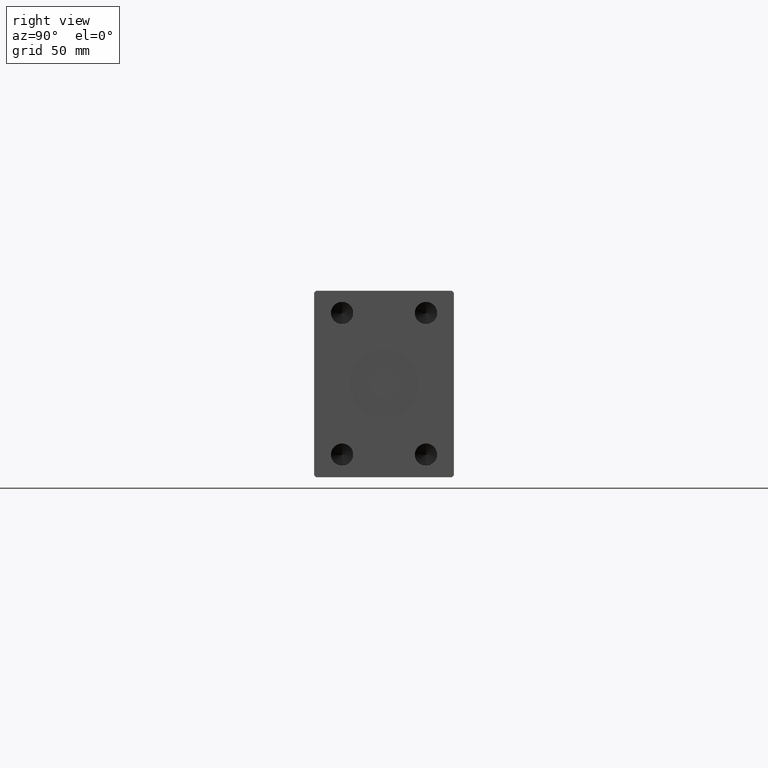
[diagram: clean part render]
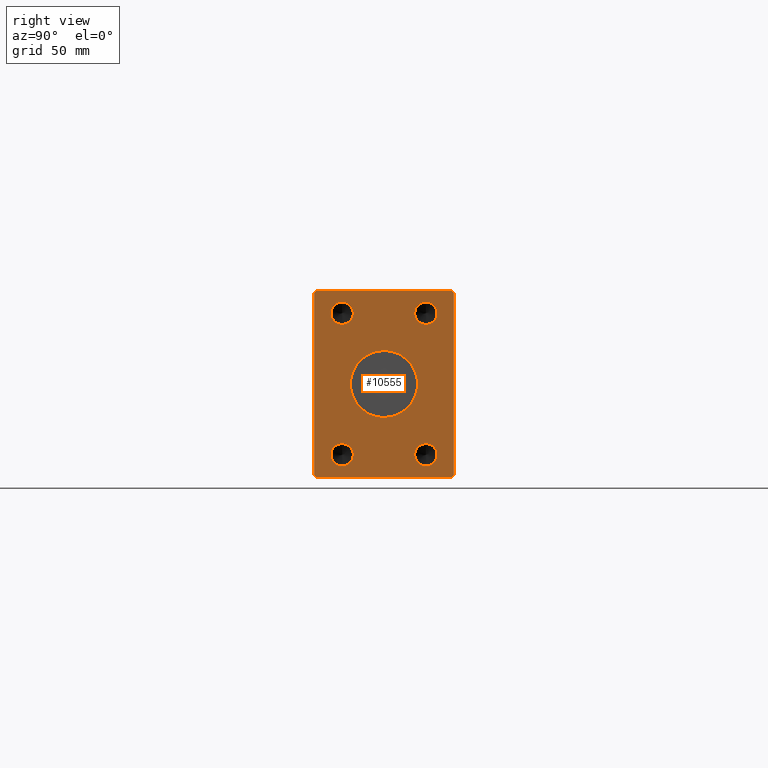
[diagram: same view with one face highlighted and labeled with its STEP entity id]
A machine part, right view. The second image highlights one B-rep face of the part: STEP entity #10555.
In plain terms, the highlighted planar face has unit normal (1, 0, 0).
Its self-contained STEP definition (entity closure, byte-faithful):
#52 = DIRECTION ( 'NONE',  ( 1.000000000000000000, -0.000000000000000000, -0.000000000000000000 ) ) ;
#449 = DIRECTION ( 'NONE',  ( 0.000000000000000000, 0.000000000000000000, -1.000000000000000000 ) ) ;
#728 = ORIENTED_EDGE ( 'NONE', *, *, #14985, .T. ) ;
#1016 = DIRECTION ( 'NONE',  ( 1.000000000000000000, -0.000000000000000000, -0.000000000000000000 ) ) ;
#1160 = DIRECTION ( 'NONE',  ( 0.000000000000000000, 0.7071067811865500152, -0.7071067811865451302 ) ) ;
#1209 = DIRECTION ( 'NONE',  ( 0.000000000000000000, 1.000000000000000000, 0.000000000000000000 ) ) ;
#1388 = CARTESIAN_POINT ( 'NONE',  ( 332.0000000000000000, 36.50000000000000711, -50.00000000000000000 ) ) ;
#2098 = FACE_BOUND ( 'NONE', #20555, .T. ) ;
#2123 = AXIS2_PLACEMENT_3D ( 'NONE', #15805, #40099, #20239 ) ;
#2928 = VECTOR ( 'NONE', #1209, 1000.000000000000000 ) ;
#4151 = CIRCLE ( 'NONE', #37928, 5.999999999999998224 ) ;
#5403 = ORIENTED_EDGE ( 'NONE', *, *, #5660, .T. ) ;
#5660 = EDGE_CURVE ( 'NONE', #17421, #19463, #24137, .T. ) ;
#5872 = CARTESIAN_POINT ( 'NONE',  ( 332.0000000000000000, 22.50000000000000000, 32.00000000000000000 ) ) ;
#6083 = AXIS2_PLACEMENT_3D ( 'NONE', #21443, #8151, #21885 ) ;
#6110 = EDGE_CURVE ( 'NONE', #40913, #20888, #20628, .T. ) ;
#6330 = CARTESIAN_POINT ( 'NONE',  ( 332.0000000000000000, 22.50000000000000000, 38.00000000000000000 ) ) ;
#6736 = CARTESIAN_POINT ( 'NONE',  ( 332.0000000000000000, -36.50000000000000711, -50.00000000000000000 ) ) ;
#6838 = CARTESIAN_POINT ( 'NONE',  ( 332.0000000000000000, 36.50000000000000711, -50.00000000000000000 ) ) ;
#7187 = VECTOR ( 'NONE', #36688, 1000.000000000000000 ) ;
#7286 = VERTEX_POINT ( 'NONE', #14846 ) ;
#7630 = DIRECTION ( 'NONE',  ( 1.000000000000000000, -0.000000000000000000, -0.000000000000000000 ) ) ;
#7977 = CARTESIAN_POINT ( 'NONE',  ( 332.0000000000000000, -22.50000000000000000, -44.00000000000000711 ) ) ;
#8131 = ORIENTED_EDGE ( 'NONE', *, *, #37627, .T. ) ;
#8151 = DIRECTION ( 'NONE',  ( 1.000000000000000000, -0.000000000000000000, -0.000000000000000000 ) ) ;
#8216 = AXIS2_PLACEMENT_3D ( 'NONE', #11620, #25800, #12078 ) ;
#8260 = CARTESIAN_POINT ( 'NONE',  ( 332.0000000000000000, -36.50000000000001421, 49.99999999999998579 ) ) ;
#8359 = CARTESIAN_POINT ( 'NONE',  ( 332.0000000000000000, -22.50000000000000000, -38.00000000000000711 ) ) ;
#8861 = VERTEX_POINT ( 'NONE', #20825 ) ;
#9044 = LINE ( 'NONE', #22770, #7187 ) ;
#9597 = CARTESIAN_POINT ( 'NONE',  ( 332.0000000000000000, -37.50000000000001421, -49.00000000000000000 ) ) ;
#9776 = CARTESIAN_POINT ( 'NONE',  ( 332.0000000000000000, -22.50000000000000000, -32.00000000000000711 ) ) ;
#10208 = LINE ( 'NONE', #6838, #23996 ) ;
#10555 = ADVANCED_FACE ( 'NONE', ( #29757, #26390, #23835, #41123, #2098, #20674 ), #36711, .T. ) ;
#10567 = CARTESIAN_POINT ( 'NONE',  ( 332.0000000000000000, -22.50000000000000000, 38.00000000000000000 ) ) ;
#10681 = ORIENTED_EDGE ( 'NONE', *, *, #6110, .F. ) ;
#10791 = EDGE_LOOP ( 'NONE', ( #32594, #41679 ) ) ;
#11038 = CARTESIAN_POINT ( 'NONE',  ( 332.0000000000000000, -37.50000000000001421, -49.00000000000000000 ) ) ;
#11620 = CARTESIAN_POINT ( 'NONE',  ( 332.0000000000000000, 0.000000000000000000, 0.000000000000000000 ) ) ;
#11865 = EDGE_LOOP ( 'NONE', ( #13521, #20750 ) ) ;
#12078 = DIRECTION ( 'NONE',  ( 0.000000000000000000, 0.000000000000000000, -1.000000000000000000 ) ) ;
#12236 = EDGE_CURVE ( 'NONE', #31925, #17287, #18291, .T. ) ;
#12404 = EDGE_LOOP ( 'NONE', ( #40006, #30327 ) ) ;
#12754 = VERTEX_POINT ( 'NONE', #19148 ) ;
#12940 = AXIS2_PLACEMENT_3D ( 'NONE', #33747, #33959, #30365 ) ;
#13269 = ORIENTED_EDGE ( 'NONE', *, *, #21131, .T. ) ;
#13521 = ORIENTED_EDGE ( 'NONE', *, *, #23669, .F. ) ;
#13931 = EDGE_CURVE ( 'NONE', #20888, #40913, #25225, .T. ) ;
#14581 = CARTESIAN_POINT ( 'NONE',  ( 332.0000000000000000, 36.50000000000000711, 50.00000000000000000 ) ) ;
#14807 = LINE ( 'NONE', #15026, #29100 ) ;
#14846 = CARTESIAN_POINT ( 'NONE',  ( 332.0000000000000000, -37.50000000000001421, 48.99999999999998579 ) ) ;
#14882 = DIRECTION ( 'NONE',  ( 0.000000000000000000, 0.000000000000000000, -1.000000000000000000 ) ) ;
#14970 = VERTEX_POINT ( 'NONE', #17581 ) ;
#14985 = EDGE_CURVE ( 'NONE', #7286, #20803, #9044, .T. ) ;
#15026 = CARTESIAN_POINT ( 'NONE',  ( 332.0000000000000000, 37.50000000000000711, -49.00000000000000000 ) ) ;
#15226 = EDGE_CURVE ( 'NONE', #43132, #34853, #32332, .T. ) ;
#15393 = CIRCLE ( 'NONE', #24040, 18.00000000000000000 ) ;
#15424 = CARTESIAN_POINT ( 'NONE',  ( 332.0000000000000000, 36.50000000000000711, 50.00000000000000000 ) ) ;
#15515 = AXIS2_PLACEMENT_3D ( 'NONE', #8359, #32440, #14882 ) ;
#15538 = DIRECTION ( 'NONE',  ( 0.000000000000000000, 0.000000000000000000, -1.000000000000000000 ) ) ;
#15591 = DIRECTION ( 'NONE',  ( 0.000000000000000000, 0.000000000000000000, -1.000000000000000000 ) ) ;
#15770 = CARTESIAN_POINT ( 'NONE',  ( 332.0000000000000000, -22.50000000000000000, 44.00000000000000000 ) ) ;
#15805 = CARTESIAN_POINT ( 'NONE',  ( 332.0000000000000000, 0.000000000000000000, 0.000000000000000000 ) ) ;
#16454 = EDGE_CURVE ( 'NONE', #38868, #8861, #15393, .T. ) ;
#17287 = VERTEX_POINT ( 'NONE', #1388 ) ;
#17421 = VERTEX_POINT ( 'NONE', #35952 ) ;
#17562 = DIRECTION ( 'NONE',  ( 0.000000000000000000, 0.000000000000000000, -1.000000000000000000 ) ) ;
#17581 = CARTESIAN_POINT ( 'NONE',  ( 332.0000000000000000, 37.50000000000000711, -49.00000000000000000 ) ) ;
#18001 = CARTESIAN_POINT ( 'NONE',  ( 332.0000000000000000, 22.50000000000000000, -38.00000000000000000 ) ) ;
#18291 = LINE ( 'NONE', #32027, #2928 ) ;
#19148 = CARTESIAN_POINT ( 'NONE',  ( 332.0000000000000000, 22.50000000000000000, -32.00000000000000000 ) ) ;
#19463 = VERTEX_POINT ( 'NONE', #15424 ) ;
#19681 = ORIENTED_EDGE ( 'NONE', *, *, #33219, .T. ) ;
#20239 = DIRECTION ( 'NONE',  ( 0.000000000000000000, 0.000000000000000000, -1.000000000000000000 ) ) ;
#20555 = EDGE_LOOP ( 'NONE', ( #23680, #10681 ) ) ;
#20628 = CIRCLE ( 'NONE', #37137, 5.999999999999998224 ) ;
#20674 = FACE_OUTER_BOUND ( 'NONE', #43424, .T. ) ;
#20750 = ORIENTED_EDGE ( 'NONE', *, *, #15226, .F. ) ;
#20803 = VERTEX_POINT ( 'NONE', #9597 ) ;
#20825 = CARTESIAN_POINT ( 'NONE',  ( 332.0000000000000000, 0.000000000000000000, -18.00000000000000000 ) ) ;
#20888 = VERTEX_POINT ( 'NONE', #28462 ) ;
#21131 = EDGE_CURVE ( 'NONE', #17287, #14970, #10208, .T. ) ;
#21361 = VECTOR ( 'NONE', #42282, 1000.000000000000114 ) ;
#21443 = CARTESIAN_POINT ( 'NONE',  ( 332.0000000000000000, -22.50000000000000000, -38.00000000000000711 ) ) ;
#21885 = DIRECTION ( 'NONE',  ( 0.000000000000000000, 0.000000000000000000, -1.000000000000000000 ) ) ;
#22513 = DIRECTION ( 'NONE',  ( 1.000000000000000000, 0.000000000000000000, 0.000000000000000000 ) ) ;
#22770 = CARTESIAN_POINT ( 'NONE',  ( 332.0000000000000000, -37.50000000000001421, 48.99999999999998579 ) ) ;
#23394 = CARTESIAN_POINT ( 'NONE',  ( 332.0000000000000000, 22.50000000000000000, 44.00000000000000000 ) ) ;
#23669 = EDGE_CURVE ( 'NONE', #34853, #43132, #4151, .T. ) ;
#23680 = ORIENTED_EDGE ( 'NONE', *, *, #13931, .F. ) ;
#23836 = ORIENTED_EDGE ( 'NONE', *, *, #31988, .T. ) ;
#23835 = FACE_BOUND ( 'NONE', #12404, .T. ) ;
#23996 = VECTOR ( 'NONE', #34283, 1000.000000000000114 ) ;
#24040 = AXIS2_PLACEMENT_3D ( 'NONE', #25661, #22513, #15538 ) ;
#24137 = LINE ( 'NONE', #42726, #21361 ) ;
#24826 = CIRCLE ( 'NONE', #42067, 5.999999999999998224 ) ;
#25225 = CIRCLE ( 'NONE', #33147, 5.999999999999998224 ) ;
#25661 = CARTESIAN_POINT ( 'NONE',  ( 332.0000000000000000, 0.000000000000000000, 0.000000000000000000 ) ) ;
#25800 = DIRECTION ( 'NONE',  ( 1.000000000000000000, 0.000000000000000000, 0.000000000000000000 ) ) ;
#25935 = CARTESIAN_POINT ( 'NONE',  ( 332.0000000000000000, 22.50000000000000000, -38.00000000000000000 ) ) ;
#26060 = VERTEX_POINT ( 'NONE', #8260 ) ;
#26156 = AXIS2_PLACEMENT_3D ( 'NONE', #25935, #39884, #15591 ) ;
#26254 = VERTEX_POINT ( 'NONE', #7977 ) ;
#26390 = FACE_BOUND ( 'NONE', #11865, .T. ) ;
#26584 = ORIENTED_EDGE ( 'NONE', *, *, #12236, .T. ) ;
#26710 = DIRECTION ( 'NONE',  ( 0.000000000000000000, -0.7071067811865474617, -0.7071067811865474617 ) ) ;
#27713 = VECTOR ( 'NONE', #31690, 1000.000000000000000 ) ;
#28462 = CARTESIAN_POINT ( 'NONE',  ( 332.0000000000000000, -22.50000000000000000, 32.00000000000000000 ) ) ;
#29049 = VECTOR ( 'NONE', #1160, 1000.000000000000114 ) ;
#29100 = VECTOR ( 'NONE', #42245, 1000.000000000000000 ) ;
#29757 = FACE_BOUND ( 'NONE', #10791, .T. ) ;
#29779 = EDGE_CURVE ( 'NONE', #8861, #38868, #36221, .T. ) ;
#30327 = ORIENTED_EDGE ( 'NONE', *, *, #34711, .F. ) ;
#30365 = DIRECTION ( 'NONE',  ( 0.000000000000000000, 0.000000000000000000, -1.000000000000000000 ) ) ;
#30622 = DIRECTION ( 'NONE',  ( 0.000000000000000000, 0.000000000000000000, -1.000000000000000000 ) ) ;
#31116 = VERTEX_POINT ( 'NONE', #9776 ) ;
#31183 = ORIENTED_EDGE ( 'NONE', *, *, #40100, .F. ) ;
#31185 = CIRCLE ( 'NONE', #26156, 5.999999999999998224 ) ;
#31294 = EDGE_CURVE ( 'NONE', #26254, #31116, #33406, .T. ) ;
#31690 = DIRECTION ( 'NONE',  ( 0.000000000000000000, -1.000000000000000000, -1.901066822988281457E-16 ) ) ;
#31925 = VERTEX_POINT ( 'NONE', #6736 ) ;
#31988 = EDGE_CURVE ( 'NONE', #14970, #17421, #14807, .T. ) ;
#32027 = CARTESIAN_POINT ( 'NONE',  ( 332.0000000000000000, -36.50000000000000711, -50.00000000000000000 ) ) ;
#32332 = CIRCLE ( 'NONE', #12940, 5.999999999999998224 ) ;
#32440 = DIRECTION ( 'NONE',  ( 1.000000000000000000, -0.000000000000000000, -0.000000000000000000 ) ) ;
#32594 = ORIENTED_EDGE ( 'NONE', *, *, #29779, .F. ) ;
#33026 = CARTESIAN_POINT ( 'NONE',  ( 332.0000000000000000, -36.50000000000001421, 49.99999999999998579 ) ) ;
#33147 = AXIS2_PLACEMENT_3D ( 'NONE', #10567, #7630, #449 ) ;
#33219 = EDGE_CURVE ( 'NONE', #19463, #26060, #35504, .T. ) ;
#33406 = CIRCLE ( 'NONE', #6083, 5.999999999999998224 ) ;
#33747 = CARTESIAN_POINT ( 'NONE',  ( 332.0000000000000000, 22.50000000000000000, 38.00000000000000000 ) ) ;
#33959 = DIRECTION ( 'NONE',  ( 1.000000000000000000, -0.000000000000000000, -0.000000000000000000 ) ) ;
#34283 = DIRECTION ( 'NONE',  ( 0.000000000000000000, 0.7071067811865474617, 0.7071067811865474617 ) ) ;
#34711 = EDGE_CURVE ( 'NONE', #31116, #26254, #36351, .T. ) ;
#34853 = VERTEX_POINT ( 'NONE', #5872 ) ;
#35504 = LINE ( 'NONE', #14581, #27713 ) ;
#35928 = EDGE_LOOP ( 'NONE', ( #31183, #40557 ) ) ;
#35952 = CARTESIAN_POINT ( 'NONE',  ( 332.0000000000000000, 37.50000000000000711, 49.00000000000000000 ) ) ;
#36221 = CIRCLE ( 'NONE', #8216, 18.00000000000000000 ) ;
#36351 = CIRCLE ( 'NONE', #15515, 5.999999999999998224 ) ;
#36381 = LINE ( 'NONE', #33026, #43556 ) ;
#36688 = DIRECTION ( 'NONE',  ( 0.000000000000000000, 0.000000000000000000, -1.000000000000000000 ) ) ;
#36711 = PLANE ( 'NONE',  #2123 ) ;
#37137 = AXIS2_PLACEMENT_3D ( 'NONE', #39019, #1016, #41498 ) ;
#37467 = EDGE_CURVE ( 'NONE', #12754, #43252, #31185, .T. ) ;
#37627 = EDGE_CURVE ( 'NONE', #20803, #31925, #38484, .T. ) ;
#37928 = AXIS2_PLACEMENT_3D ( 'NONE', #6330, #44095, #30622 ) ;
#37960 = CARTESIAN_POINT ( 'NONE',  ( 332.0000000000000000, 22.50000000000000000, -44.00000000000000000 ) ) ;
#38484 = LINE ( 'NONE', #11038, #29049 ) ;
#38868 = VERTEX_POINT ( 'NONE', #41148 ) ;
#39019 = CARTESIAN_POINT ( 'NONE',  ( 332.0000000000000000, -22.50000000000000000, 38.00000000000000000 ) ) ;
#39884 = DIRECTION ( 'NONE',  ( 1.000000000000000000, -0.000000000000000000, -0.000000000000000000 ) ) ;
#40006 = ORIENTED_EDGE ( 'NONE', *, *, #31294, .F. ) ;
#40092 = ORIENTED_EDGE ( 'NONE', *, *, #44072, .T. ) ;
#40099 = DIRECTION ( 'NONE',  ( 1.000000000000000000, 0.000000000000000000, 0.000000000000000000 ) ) ;
#40100 = EDGE_CURVE ( 'NONE', #43252, #12754, #24826, .T. ) ;
#40557 = ORIENTED_EDGE ( 'NONE', *, *, #37467, .F. ) ;
#40913 = VERTEX_POINT ( 'NONE', #15770 ) ;
#41123 = FACE_BOUND ( 'NONE', #35928, .T. ) ;
#41148 = CARTESIAN_POINT ( 'NONE',  ( 332.0000000000000000, 2.204364238465235428E-15, 18.00000000000000000 ) ) ;
#41498 = DIRECTION ( 'NONE',  ( 0.000000000000000000, 0.000000000000000000, -1.000000000000000000 ) ) ;
#41679 = ORIENTED_EDGE ( 'NONE', *, *, #16454, .F. ) ;
#42067 = AXIS2_PLACEMENT_3D ( 'NONE', #18001, #52, #17562 ) ;
#42245 = DIRECTION ( 'NONE',  ( 0.000000000000000000, 0.000000000000000000, 1.000000000000000000 ) ) ;
#42282 = DIRECTION ( 'NONE',  ( 0.000000000000000000, -0.7071067811865474617, 0.7071067811865474617 ) ) ;
#42726 = CARTESIAN_POINT ( 'NONE',  ( 332.0000000000000000, 37.50000000000000711, 49.00000000000000000 ) ) ;
#43132 = VERTEX_POINT ( 'NONE', #23394 ) ;
#43252 = VERTEX_POINT ( 'NONE', #37960 ) ;
#43424 = EDGE_LOOP ( 'NONE', ( #5403, #19681, #40092, #728, #8131, #26584, #13269, #23836 ) ) ;
#43556 = VECTOR ( 'NONE', #26710, 1000.000000000000114 ) ;
#44072 = EDGE_CURVE ( 'NONE', #26060, #7286, #36381, .T. ) ;
#44095 = DIRECTION ( 'NONE',  ( 1.000000000000000000, -0.000000000000000000, -0.000000000000000000 ) ) ;